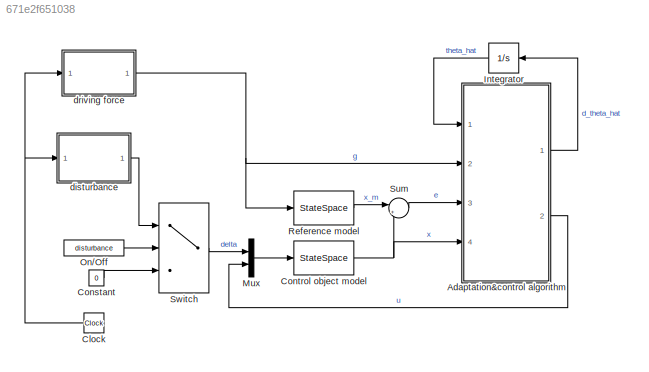
MODEL slx_671e2f651038
KIND model
CONFIG AbsTol = auto
CONFIG EnableMultiTasking = off
CONFIG FixedStep = auto
CONFIG MaxStep = auto
CONFIG MinStep = auto
CONFIG RelTol = 1e-3
CONFIG SampleTimeConstraint = Unconstrained
CONFIG SolverName = VariableStepAuto
CONFIG StartTime = 0.0
CONFIG StopTime = 1000
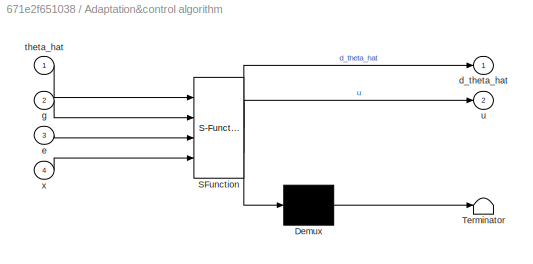
BLOCK [SubSystem] Adaptation&control algorithm
  ErrorFcn = Stateflow.Translate.translate
  PermitHierarchicalResolution = ExplicitOnly
  Ports = [4, 2]
  RequestExecContextInheritance = off
  SFBlockType = MATLAB Function
  TreatAsAtomicUnit = on
BLOCK [Demux] Adaptation&control algorithm/ Demux 
  Outputs = 1
  Ports = [1, 1]
BLOCK [S-Function] Adaptation&control algorithm/ SFunction 
  EnableBusSupport = on
  FunctionName = sf_sfun
  Parameters = P,b,gamma,k,sigma
  PortCounts = [4 3]
  Ports = [4, 3]
  SFcnIsStateOwnerBlock = off
  SFunctionDeploymentMode = off
  Tag = Stateflow S-Function 3
BLOCK [Terminator] Adaptation&control algorithm/ Terminator 
BLOCK [Outport] Adaptation&control algorithm/d_theta_hat
BLOCK [Inport] Adaptation&control algorithm/e
  Port = 3
BLOCK [Inport] Adaptation&control algorithm/g
  Port = 2
BLOCK [Inport] Adaptation&control algorithm/theta_hat
BLOCK [Outport] Adaptation&control algorithm/u
  Port = 2
BLOCK [Inport] Adaptation&control algorithm/x
  Port = 4
BLOCK [Clock] Clock
  NameLocation = top
BLOCK [Constant] Constant
  Value = 0
BLOCK [StateSpace] Control object model
  A = A
  B = [eye(2) b]
  C = eye(2)
  D = zeros(2,3)
  InitialCondition = x_0
  Ports = [1, 1]
BLOCK [Integrator] Integrator
  NameLocation = top
  Ports = [1, 1]
BLOCK [Mux] Mux
  DisplayOption = bar
  Inputs = 2
  Ports = [2, 1]
BLOCK [Constant] On//Off
  Value = disturbance
BLOCK [StateSpace] Reference model
  A = A_m
  B = b_m
  C = eye(2)
  D = [0;0]
  InitialCondition = 0
  Ports = [1, 1]
BLOCK [Sum] Sum
  Inputs = |+-
  Ports = [2, 1]
BLOCK [Switch] Switch
  Criteria = u2 > Threshold
  InputSameDT = off
  SaturateOnIntegerOverflow = off
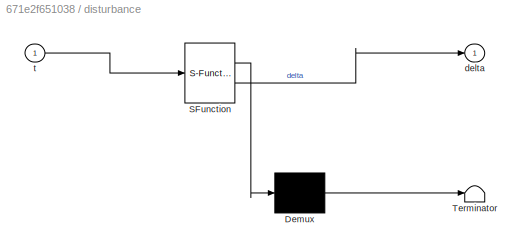
BLOCK [SubSystem] disturbance
  ErrorFcn = Stateflow.Translate.translate
  PermitHierarchicalResolution = ExplicitOnly
  Ports = [1, 1]
  RequestExecContextInheritance = off
  SFBlockType = MATLAB Function
  TreatAsAtomicUnit = on
BLOCK [Demux] disturbance/ Demux 
  Outputs = 1
  Ports = [1, 1]
BLOCK [S-Function] disturbance/ SFunction 
  EnableBusSupport = on
  FunctionName = sf_sfun
  PortCounts = [1 2]
  Ports = [1, 2]
  SFcnIsStateOwnerBlock = off
  SFunctionDeploymentMode = off
  Tag = Stateflow S-Function 2
BLOCK [Terminator] disturbance/ Terminator 
BLOCK [Outport] disturbance/delta
BLOCK [Inport] disturbance/t
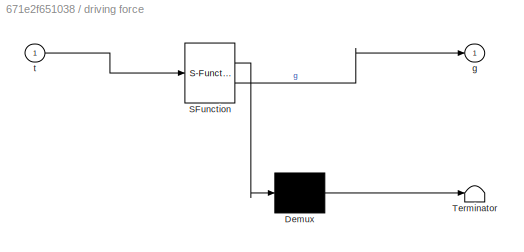
BLOCK [SubSystem] driving force
  ErrorFcn = Stateflow.Translate.translate
  PermitHierarchicalResolution = ExplicitOnly
  Ports = [1, 1]
  RequestExecContextInheritance = off
  SFBlockType = MATLAB Function
  TreatAsAtomicUnit = on
BLOCK [Demux] driving force/ Demux 
  Outputs = 1
  Ports = [1, 1]
BLOCK [S-Function] driving force/ SFunction 
  EnableBusSupport = on
  FunctionName = sf_sfun
  PortCounts = [1 2]
  Ports = [1, 2]
  SFcnIsStateOwnerBlock = off
  SFunctionDeploymentMode = off
  Tag = Stateflow S-Function 1
BLOCK [Terminator] driving force/ Terminator 
BLOCK [Outport] driving force/g
BLOCK [Inport] driving force/t
LINE Adaptation&control algorithm:1 -> Integrator:1
LINE Adaptation&control algorithm:2 -> Mux:2
NET Clock:1 -> disturbance:1, driving force:1
LINE Constant:1 -> Switch:3
NET Control object model:1 -> Adaptation&control algorithm:4, Sum:2
LINE Integrator:1 -> Adaptation&control algorithm:1
LINE Mux:1 -> Control object model:1
LINE On//Off:1 -> Switch:2
LINE Reference model:1 -> Sum:1
LINE Sum:1 -> Adaptation&control algorithm:3
LINE Switch:1 -> Mux:1
LINE disturbance:1 -> Switch:1
NET driving force:1 -> Adaptation&control algorithm:2, Reference model:1
note: NET lines group one-source signal fan-out (src -> all destinations, sorted); 1:1 wires keep LINE
CHART driving force states=1 transitions=1
  STATE_LABEL 'eML_blk_kernel()'
  STATE_LABEL 'SCRIPT:\nfunction g = fcn(t)\n\ng = 2*sign(sin(0.4*t)) + 3;'
CHART disturbance states=1 transitions=1
  STATE_LABEL 'eML_blk_kernel()'
  STATE_LABEL 'SCRIPT:\nfunction delta = fcn(t)\n\ndelta = [0.6*sin(10*t) + 0.1*sin(50*t);\n        0.5*cos(12*t) + 0.2*sin(30*t)];\n'
CHART Adaptation&control
algorithm states=1 transitions=1
  STATE_LABEL 'eML_blk_kernel()'
  STATE_LABEL "SCRIPT:\nfunction [d_theta_hat, u]  = fcn(theta_hat, g, e, x, gamma, b, P, k, sigma)\n\nd_theta_hat = -sigma*theta_hat + gamma*x*b'*P*e;\nu = theta_hat'*x + 1/k*g;\n"
CHART  states=0 transitions=0
CHART  states=0 transitions=0
CHART  states=0 transitions=0
